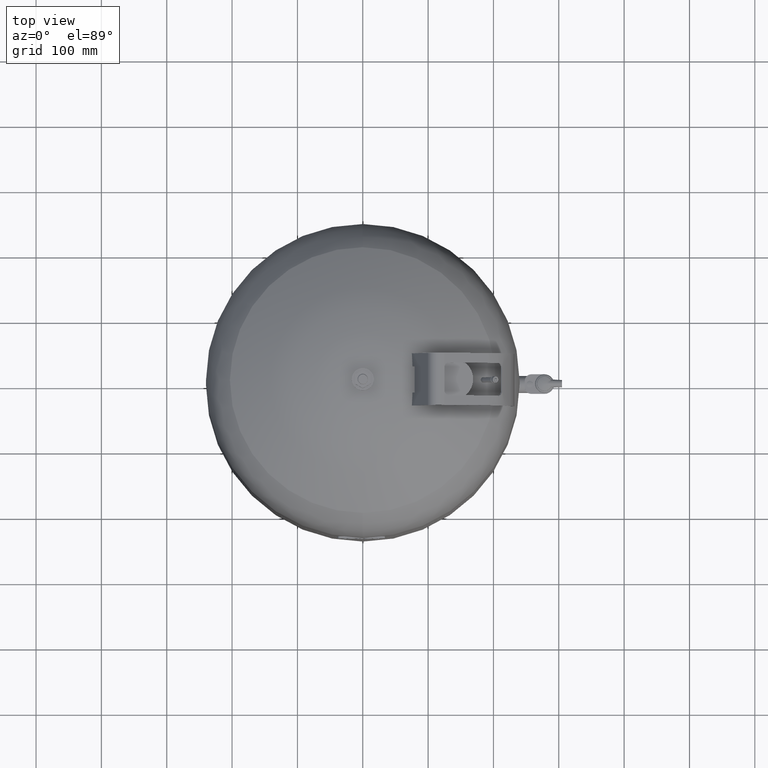
[diagram: clean part render]
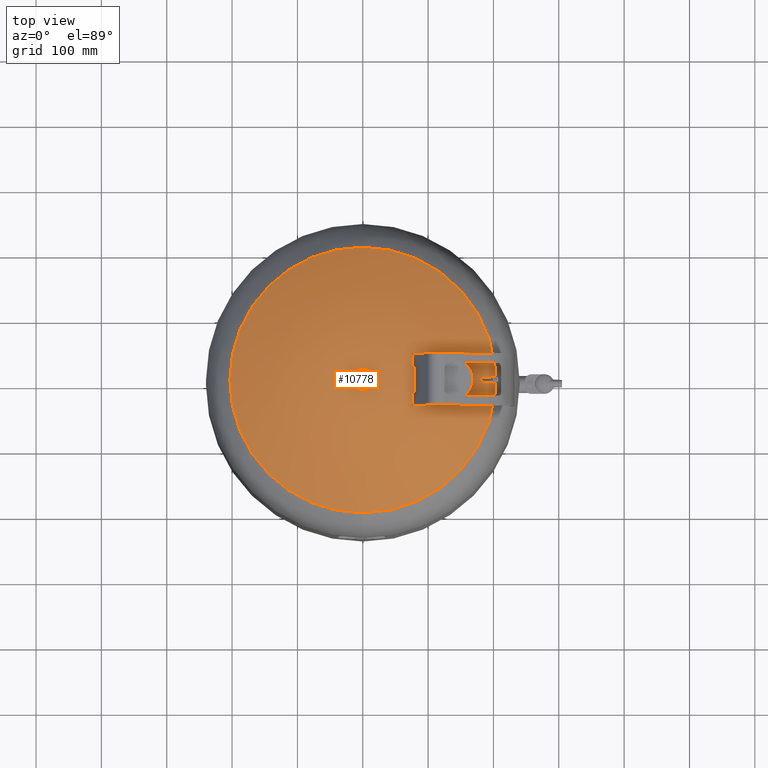
[diagram: same view with one face highlighted and labeled with its STEP entity id]
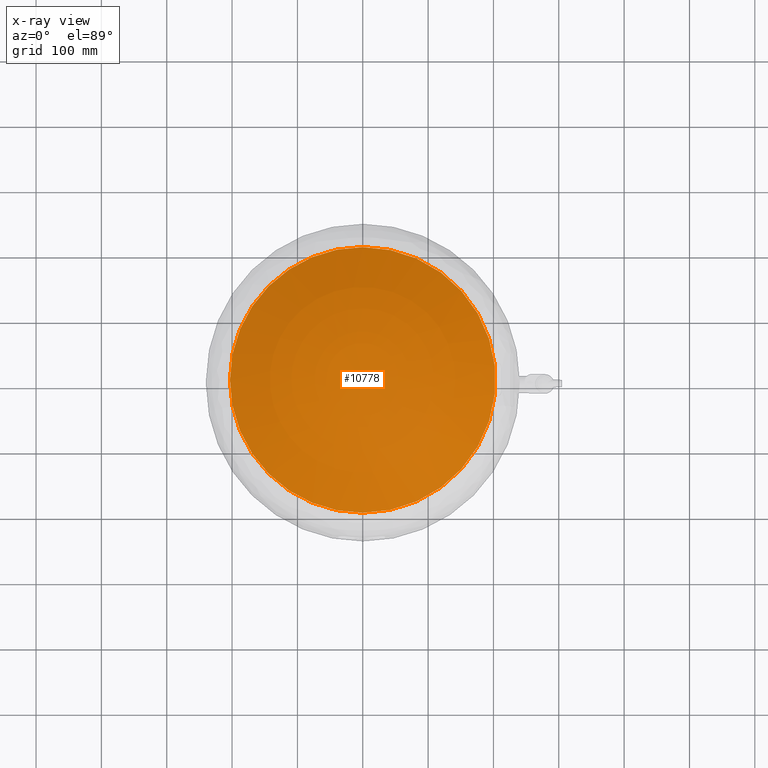
[diagram: x-ray of the same camera — body ghosted, the highlighted face saturated]
A machine part, top view. The second image highlights one B-rep face of the part: STEP entity #10778.
The next image is the same camera in x-ray: the body ghosted, the highlighted face saturated — about 0% of this face is hidden behind the body in this view.
In plain terms, the highlighted face is a freeform B-spline surface patch.
Its self-contained STEP definition (entity closure, byte-faithful):
#10704=CARTESIAN_POINT('',(-4.111121E-015,-203.325884543761560,740.894274520860450));
#10705=VERTEX_POINT('',#10704);
#10723=CARTESIAN_POINT('',(-2.901054E-014,203.325884543761560,740.894274520860340));
#10724=VERTEX_POINT('',#10723);
#10732=CARTESIAN_POINT('',(4.711066E-015,1.302307E-014,740.894274520860450));
#10733=DIRECTION('',(0.0,0.0,1.0));
#10734=DIRECTION('',(-1.0,0.0,0.0));
#10735=AXIS2_PLACEMENT_3D('',#10732,#10733,#10734);
#10736=CIRCLE('',#10735,203.325884543761560);
#10737=EDGE_CURVE('',#10705,#10724,#10736,.T.);
#10742=CARTESIAN_POINT('',(-166.557609967272210,203.325884543761560,688.381056909723500));
#10743=CARTESIAN_POINT('',(-248.210906326204850,0.0,805.0));
#10744=CARTESIAN_POINT('',(-166.557609967272190,-203.325884543761560,688.381056909723500));
#10745=CARTESIAN_POINT('',(0.0,203.325884543761590,805.000000000000340));
#10746=CARTESIAN_POINT('',(0.0,3.192476E-014,978.790279320947770));
#10747=CARTESIAN_POINT('',(-2.842171E-014,-203.325884543761530,805.000000000000230));
#10748=CARTESIAN_POINT('',(166.557609967272160,203.325884543761560,688.381056909723500));
#10749=CARTESIAN_POINT('',(248.210906326204820,-3.155444E-030,805.0));
#10750=CARTESIAN_POINT('',(166.557609967272070,-203.325884543761560,688.381056909723610));
#10758=(BOUNDED_SURFACE()B_SPLINE_SURFACE(2,2,((#10742,#10745,#10748),(#10743,#10746,#10749),(#10744,#10747,#10750)),.UNSPECIFIED.,.F.,.F.,.U.)B_SPLINE_SURFACE_WITH_KNOTS((3,3),(3,3),(-0.610841263203562,0.610841263203562),(0.0,1.221682526407125),.UNSPECIFIED.)GEOMETRIC_REPRESENTATION_ITEM()RATIONAL_B_SPLINE_SURFACE(((1.0,0.819165795545446,1.0),(0.819165795545447,0.671032600591604,0.819165795545447),(1.0,0.819165795545446,1.0)))REPRESENTATION_ITEM('')SURFACE());
#10759=CARTESIAN_POINT('',(-203.325884543761560,1.302307E-014,740.894274520860560));
#10760=VERTEX_POINT('',#10759);
#10761=CARTESIAN_POINT('',(4.711066E-015,1.302307E-014,740.894274520860450));
#10762=DIRECTION('',(0.0,0.0,1.0));
#10763=DIRECTION('',(-1.0,0.0,0.0));
#10764=AXIS2_PLACEMENT_3D('',#10761,#10762,#10763);
#10765=CIRCLE('',#10764,203.325884543761560);
#10766=EDGE_CURVE('',#10760,#10705,#10765,.T.);
#10767=ORIENTED_EDGE('',*,*,#10766,.T.);
#10768=ORIENTED_EDGE('',*,*,#10737,.T.);
#10769=CARTESIAN_POINT('',(4.711066E-015,1.302307E-014,740.894274520860450));
#10770=DIRECTION('',(0.0,0.0,1.0));
#10771=DIRECTION('',(-1.0,0.0,0.0));
#10772=AXIS2_PLACEMENT_3D('',#10769,#10770,#10771);
#10773=CIRCLE('',#10772,203.325884543761560);
#10774=EDGE_CURVE('',#10724,#10760,#10773,.T.);
#10775=ORIENTED_EDGE('',*,*,#10774,.T.);
#10776=EDGE_LOOP('',(#10767,#10768,#10775));
#10777=FACE_OUTER_BOUND('',#10776,.T.);
#10778=ADVANCED_FACE('',(#10777),#10758,.T.);